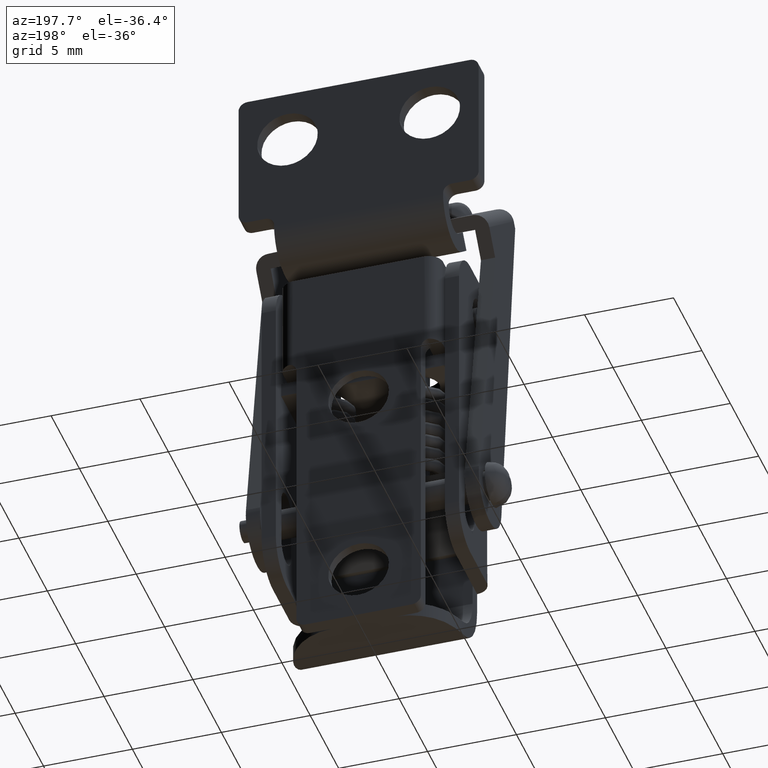
[diagram: clean part render]
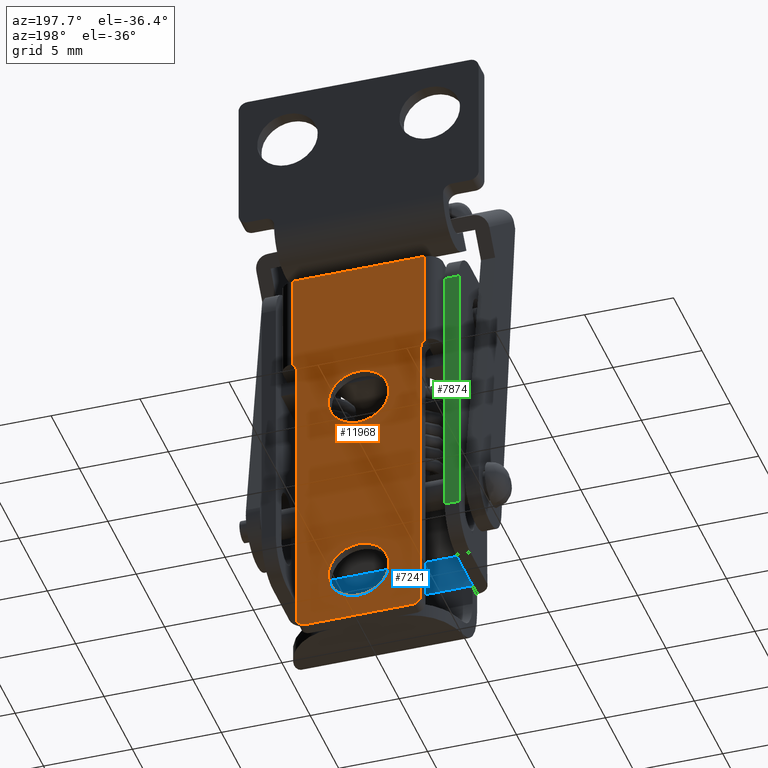
[diagram: same view with three faces highlighted in distinct colors, each labeled with its STEP entity id]
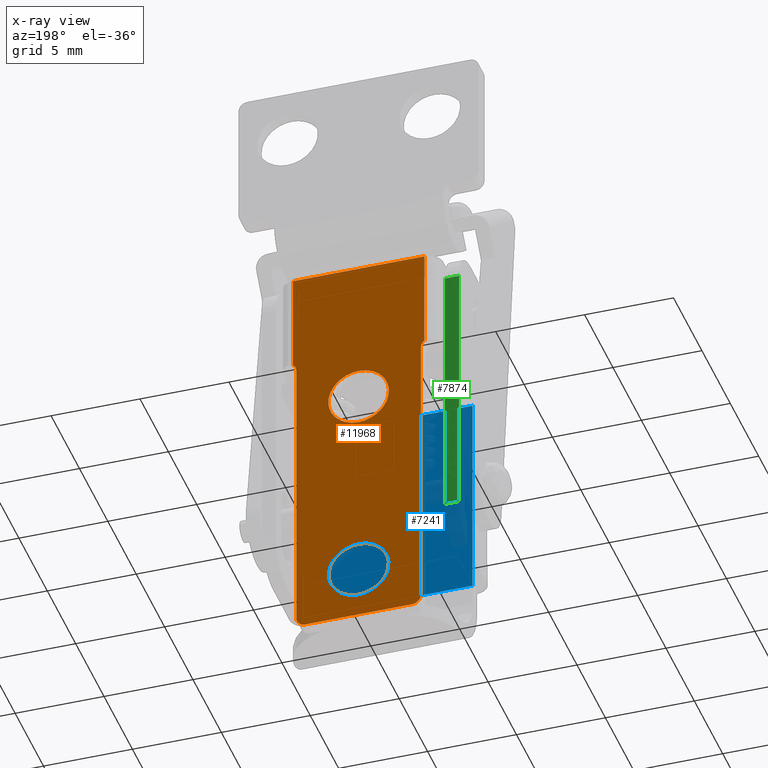
[diagram: x-ray of the same camera — body ghosted, the three highlighted faces saturated]
A machine part, auxiliary view with three faces highlighted in distinct colors.
The next image is the same camera in x-ray (body ghosted, the three faces saturated) — at least one of them is partly hidden behind the body in this view.
Their STEP definitions:

[orange] entity #11968 — the highlighted face is a freeform B-spline surface patch.
#9586=CARTESIAN_POINT('',(1.696829157312977,2.150009000000000,-5.668883517277946));
#9587=VERTEX_POINT('',#9586);
#9627=CARTESIAN_POINT('',(-1.696829157312977,2.150009000000000,-5.461318482722215));
#9628=VERTEX_POINT('',#9627);
#9634=CARTESIAN_POINT('',(0.0,2.150009000000000,-3.865101000000080));
#9635=VERTEX_POINT('',#9634);
#9636=CARTESIAN_POINT('',(0.0,2.150009000000000,-3.865101000000080));
#9637=CARTESIAN_POINT('',(-1.599200313674899,2.150009000000000,-3.865101000000081));
#9638=CARTESIAN_POINT('',(-1.696829157312977,2.150008999999999,-5.461318482722213));
#9646=(BOUNDED_CURVE()B_SPLINE_CURVE(2,(#9636,#9637,#9638),.UNSPECIFIED.,.F.,.U.)B_SPLINE_CURVE_WITH_KNOTS((3,3),(0.500000000000000,0.739332962234991),.UNSPECIFIED.)CURVE()GEOMETRIC_REPRESENTATION_ITEM()RATIONAL_B_SPLINE_CURVE((1.0,0.719603993291340,0.976072041658249))REPRESENTATION_ITEM(''));
#9647=EDGE_CURVE('',#9635,#9628,#9646,.T.);
#9649=CARTESIAN_POINT('',(1.696829157312978,2.150009000000000,-5.668883517277947));
#9650=CARTESIAN_POINT('',(1.700000000000000,2.150008999999999,-5.617040697642082));
#9651=CARTESIAN_POINT('',(1.700000000000000,2.150009000000000,-5.565101000000080));
#9652=CARTESIAN_POINT('',(1.700000000000000,2.150009000000000,-3.865101000000080));
#9653=CARTESIAN_POINT('',(0.0,2.150009000000000,-3.865101000000080));
#9661=(BOUNDED_CURVE()B_SPLINE_CURVE(2,(#9649,#9650,#9651,#9652,#9653),.UNSPECIFIED.,.F.,.U.)B_SPLINE_CURVE_WITH_KNOTS((3,2,3),(0.239332962234992,0.250000000000000,0.500000000000000),.UNSPECIFIED.)CURVE()GEOMETRIC_REPRESENTATION_ITEM()RATIONAL_B_SPLINE_CURVE((0.976072041658249,0.987502787895208,1.0,0.707106781186548,1.0))REPRESENTATION_ITEM(''));
#9662=EDGE_CURVE('',#9587,#9635,#9661,.T.);
#9686=CARTESIAN_POINT('',(0.0,2.150009000000000,-7.265101000000080));
#9687=VERTEX_POINT('',#9686);
#9688=CARTESIAN_POINT('',(0.0,2.150009000000000,-7.265101000000080));
#9689=CARTESIAN_POINT('',(1.599200313674899,2.150008999999999,-7.265101000000081));
#9690=CARTESIAN_POINT('',(1.696829157312978,2.150009000000000,-5.668883517277947));
#9698=(BOUNDED_CURVE()B_SPLINE_CURVE(2,(#9688,#9689,#9690),.UNSPECIFIED.,.F.,.U.)B_SPLINE_CURVE_WITH_KNOTS((3,3),(0.0,0.239332962234992),.UNSPECIFIED.)CURVE()GEOMETRIC_REPRESENTATION_ITEM()RATIONAL_B_SPLINE_CURVE((1.0,0.719603993291339,0.976072041658249))REPRESENTATION_ITEM(''));
#9699=EDGE_CURVE('',#9687,#9587,#9698,.T.);
#9701=CARTESIAN_POINT('',(-1.696829157312978,2.150009000000000,-5.461318482722215));
#9702=CARTESIAN_POINT('',(-1.700000000000000,2.150008999999999,-5.513161302358078));
#9703=CARTESIAN_POINT('',(-1.700000000000000,2.150009000000000,-5.565101000000080));
#9704=CARTESIAN_POINT('',(-1.700000000000000,2.150009000000000,-7.265101000000082));
#9705=CARTESIAN_POINT('',(0.0,2.150009000000000,-7.265101000000080));
#9713=(BOUNDED_CURVE()B_SPLINE_CURVE(2,(#9701,#9702,#9703,#9704,#9705),.UNSPECIFIED.,.F.,.U.)B_SPLINE_CURVE_WITH_KNOTS((3,2,3),(0.739332962234992,0.750000000000000,1.0),.UNSPECIFIED.)CURVE()GEOMETRIC_REPRESENTATION_ITEM()RATIONAL_B_SPLINE_CURVE((0.976072041658249,0.987502787895208,1.0,0.707106781186548,1.0))REPRESENTATION_ITEM(''));
#9714=EDGE_CURVE('',#9628,#9687,#9713,.T.);
#9890=CARTESIAN_POINT('',(1.696829157312977,2.150009000000000,5.831116482722054));
#9891=VERTEX_POINT('',#9890);
#9931=CARTESIAN_POINT('',(-1.696829157312977,2.150009000000000,6.038681517277784));
#9932=VERTEX_POINT('',#9931);
#9938=CARTESIAN_POINT('',(0.0,2.150009000000000,7.634898999999920));
#9939=VERTEX_POINT('',#9938);
#9940=CARTESIAN_POINT('',(0.0,2.150009000000000,7.634898999999920));
#9941=CARTESIAN_POINT('',(-1.599200313674901,2.150009000000000,7.634898999999923));
#9942=CARTESIAN_POINT('',(-1.696829157312977,2.150009000000000,6.038681517277784));
#9950=(BOUNDED_CURVE()B_SPLINE_CURVE(2,(#9940,#9941,#9942),.UNSPECIFIED.,.F.,.U.)B_SPLINE_CURVE_WITH_KNOTS((3,3),(0.500000000000000,0.739332962234992),.UNSPECIFIED.)CURVE()GEOMETRIC_REPRESENTATION_ITEM()RATIONAL_B_SPLINE_CURVE((1.0,0.719603993291339,0.976072041658250))REPRESENTATION_ITEM(''));
#9951=EDGE_CURVE('',#9939,#9932,#9950,.T.);
#9953=CARTESIAN_POINT('',(1.696829157312978,2.150009000000000,5.831116482722055));
#9954=CARTESIAN_POINT('',(1.700000000000000,2.150008999999999,5.882959302357918));
#9955=CARTESIAN_POINT('',(1.700000000000000,2.150009000000000,5.934898999999920));
#9956=CARTESIAN_POINT('',(1.700000000000000,2.150009000000000,7.634898999999920));
#9957=CARTESIAN_POINT('',(0.0,2.150009000000000,7.634898999999920));
#9965=(BOUNDED_CURVE()B_SPLINE_CURVE(2,(#9953,#9954,#9955,#9956,#9957),.UNSPECIFIED.,.F.,.U.)B_SPLINE_CURVE_WITH_KNOTS((3,2,3),(0.239332962234992,0.250000000000000,0.500000000000000),.UNSPECIFIED.)CURVE()GEOMETRIC_REPRESENTATION_ITEM()RATIONAL_B_SPLINE_CURVE((0.976072041658249,0.987502787895208,1.0,0.707106781186548,1.0))REPRESENTATION_ITEM(''));
#9966=EDGE_CURVE('',#9891,#9939,#9965,.T.);
#9990=CARTESIAN_POINT('',(0.0,2.150009000000000,4.234898999999920));
#9991=VERTEX_POINT('',#9990);
#9992=CARTESIAN_POINT('',(0.0,2.150009000000000,4.234898999999920));
#9993=CARTESIAN_POINT('',(1.599200313674899,2.150008999999999,4.234898999999920));
#9994=CARTESIAN_POINT('',(1.696829157312978,2.150009000000000,5.831116482722055));
#10002=(BOUNDED_CURVE()B_SPLINE_CURVE(2,(#9992,#9993,#9994),.UNSPECIFIED.,.F.,.U.)B_SPLINE_CURVE_WITH_KNOTS((3,3),(0.0,0.239332962234992),.UNSPECIFIED.)CURVE()GEOMETRIC_REPRESENTATION_ITEM()RATIONAL_B_SPLINE_CURVE((1.0,0.719603993291339,0.976072041658249))REPRESENTATION_ITEM(''));
#10003=EDGE_CURVE('',#9991,#9891,#10002,.T.);
#10005=CARTESIAN_POINT('',(-1.696829157312977,2.150009000000000,6.038681517277784));
#10006=CARTESIAN_POINT('',(-1.700000000000000,2.150009000000000,5.986838697641922));
#10007=CARTESIAN_POINT('',(-1.700000000000000,2.150009000000000,5.934898999999920));
#10008=CARTESIAN_POINT('',(-1.700000000000000,2.150009000000000,4.234898999999919));
#10009=CARTESIAN_POINT('',(0.0,2.150009000000000,4.234898999999920));
#10017=(BOUNDED_CURVE()B_SPLINE_CURVE(2,(#10005,#10006,#10007,#10008,#10009),.UNSPECIFIED.,.F.,.U.)B_SPLINE_CURVE_WITH_KNOTS((3,2,3),(0.739332962234992,0.750000000000000,1.0),.UNSPECIFIED.)CURVE()GEOMETRIC_REPRESENTATION_ITEM()RATIONAL_B_SPLINE_CURVE((0.976072041658250,0.987502787895208,1.0,0.707106781186548,1.0))REPRESENTATION_ITEM(''));
#10018=EDGE_CURVE('',#9932,#9991,#10017,.T.);
#11031=CARTESIAN_POINT('',(3.700000000000000,2.150009000000065,14.434898999999920));
#11032=VERTEX_POINT('',#11031);
#11033=CARTESIAN_POINT('',(-3.700000000000000,2.150009000000065,14.434898999999920));
#11034=VERTEX_POINT('',#11033);
#11035=CARTESIAN_POINT('',(3.700000000000000,2.150009000000065,14.434898999999920));
#11036=CARTESIAN_POINT('',(-3.700000000000000,2.150009000000065,14.434898999999920));
#11037=QUASI_UNIFORM_CURVE('',1,(#11035,#11036),.UNSPECIFIED.,.F.,.U.);
#11038=EDGE_CURVE('',#11032,#11034,#11037,.T.);
#11216=CARTESIAN_POINT('',(-3.700000000000000,2.150009000000000,8.834899000000000));
#11217=VERTEX_POINT('',#11216);
#11231=CARTESIAN_POINT('',(-3.500000000000000,2.150009000000065,8.434899000000000));
#11232=VERTEX_POINT('',#11231);
#11233=CARTESIAN_POINT('',(-3.500000000000000,2.150009000000065,8.434899000000000));
#11234=CARTESIAN_POINT('',(-3.500000000000000,2.150009000000065,8.684899000000000));
#11235=CARTESIAN_POINT('',(-3.700000000000000,2.150009000000065,8.834899000000000));
#11243=(BOUNDED_CURVE()B_SPLINE_CURVE(2,(#11233,#11234,#11235),.UNSPECIFIED.,.F.,.U.)CURVE()GEOMETRIC_REPRESENTATION_ITEM()QUASI_UNIFORM_CURVE()RATIONAL_B_SPLINE_CURVE((1.0,0.894427190999916,1.0))REPRESENTATION_ITEM(''));
#11244=EDGE_CURVE('',#11232,#11217,#11243,.T.);
#11285=CARTESIAN_POINT('',(3.500000000000000,2.150009000000065,8.434899000000000));
#11286=VERTEX_POINT('',#11285);
#11292=CARTESIAN_POINT('',(3.700000000000000,2.150009000000000,8.834899000000000));
#11293=VERTEX_POINT('',#11292);
#11294=CARTESIAN_POINT('',(3.700000000000000,2.150009000000000,8.834899000000000));
#11295=CARTESIAN_POINT('',(3.500000000000000,2.150009000000066,8.684899000000000));
#11296=CARTESIAN_POINT('',(3.500000000000000,2.150009000000065,8.434899000000000));
#11304=(BOUNDED_CURVE()B_SPLINE_CURVE(2,(#11294,#11295,#11296),.UNSPECIFIED.,.F.,.U.)CURVE()GEOMETRIC_REPRESENTATION_ITEM()QUASI_UNIFORM_CURVE()RATIONAL_B_SPLINE_CURVE((1.0,0.894427190999916,1.0))REPRESENTATION_ITEM(''));
#11305=EDGE_CURVE('',#11293,#11286,#11304,.T.);
#11706=CARTESIAN_POINT('',(-3.700000000000000,2.150009000000000,8.834899000000000));
#11707=CARTESIAN_POINT('',(-3.700000000000000,2.150009000000065,14.434898999999920));
#11708=QUASI_UNIFORM_CURVE('',1,(#11706,#11707),.UNSPECIFIED.,.F.,.U.);
#11709=EDGE_CURVE('',#11217,#11034,#11708,.T.);
#11757=CARTESIAN_POINT('',(3.700000000000000,2.150009000000065,14.434898999999920));
#11758=CARTESIAN_POINT('',(3.700000000000000,2.150009000000000,8.834899000000000));
#11759=QUASI_UNIFORM_CURVE('',1,(#11757,#11758),.UNSPECIFIED.,.F.,.U.);
#11760=EDGE_CURVE('',#11032,#11293,#11759,.T.);
#11895=CARTESIAN_POINT('',(-4.069629985657365,2.150009000000000,15.583748955421459));
#11896=CARTESIAN_POINT('',(4.069630184140832,2.150009000000000,15.583748955421459));
#11897=CARTESIAN_POINT('',(-4.069629985657365,2.150009000000000,-9.713951572329712));
#11898=CARTESIAN_POINT('',(4.069630184140832,2.150009000000000,-9.713951572329712));
#11899=B_SPLINE_SURFACE_WITH_KNOTS('',1,1,((#11895,#11897),(#11896,#11898)),.UNSPECIFIED.,.F.,.F.,.U.,(2,2),(2,2),(0.0,8.139260169798197),(0.0,25.297700527751172),.UNSPECIFIED.);
#11900=ORIENTED_EDGE('',*,*,#11709,.T.);
#11901=ORIENTED_EDGE('',*,*,#11038,.F.);
#11902=ORIENTED_EDGE('',*,*,#11760,.T.);
#11903=ORIENTED_EDGE('',*,*,#11305,.T.);
#11904=CARTESIAN_POINT('',(3.500000000000000,2.150009000000065,-8.065101000000000));
#11905=VERTEX_POINT('',#11904);
#11906=CARTESIAN_POINT('',(3.500000000000000,2.150009000000065,-8.065101000000000));
#11907=CARTESIAN_POINT('',(3.500000000000000,2.150009000000065,8.434899000000000));
#11908=QUASI_UNIFORM_CURVE('',1,(#11906,#11907),.UNSPECIFIED.,.F.,.U.);
#11909=EDGE_CURVE('',#11905,#11286,#11908,.T.);
#11910=ORIENTED_EDGE('',*,*,#11909,.F.);
#11911=CARTESIAN_POINT('',(3.0,2.150009000000065,-8.565101000000102));
#11912=VERTEX_POINT('',#11911);
#11913=CARTESIAN_POINT('',(3.0,2.150009000000065,-8.565101000000102));
#11914=CARTESIAN_POINT('',(3.499999999999999,2.150009000000065,-8.565101000000000));
#11915=CARTESIAN_POINT('',(3.500000000000000,2.150009000000065,-8.065101000000000));
#11923=(BOUNDED_CURVE()B_SPLINE_CURVE(2,(#11913,#11914,#11915),.UNSPECIFIED.,.F.,.U.)CURVE()GEOMETRIC_REPRESENTATION_ITEM()QUASI_UNIFORM_CURVE()RATIONAL_B_SPLINE_CURVE((1.0,0.707106781186548,1.0))REPRESENTATION_ITEM(''));
#11924=EDGE_CURVE('',#11912,#11905,#11923,.T.);
#11925=ORIENTED_EDGE('',*,*,#11924,.F.);
#11926=CARTESIAN_POINT('',(-3.0,2.150009000000065,-8.565101000000000));
#11927=VERTEX_POINT('',#11926);
#11928=CARTESIAN_POINT('',(-3.0,2.150009000000065,-8.565101000000000));
#11929=CARTESIAN_POINT('',(3.0,2.150009000000065,-8.565101000000102));
#11930=QUASI_UNIFORM_CURVE('',1,(#11928,#11929),.UNSPECIFIED.,.F.,.U.);
#11931=EDGE_CURVE('',#11927,#11912,#11930,.T.);
#11932=ORIENTED_EDGE('',*,*,#11931,.F.);
#11933=CARTESIAN_POINT('',(-3.500000000000000,2.150009000000065,-8.065101000000000));
#11934=VERTEX_POINT('',#11933);
#11935=CARTESIAN_POINT('',(-3.500000000000000,2.150009000000065,-8.065101000000000));
#11936=CARTESIAN_POINT('',(-3.499999999999999,2.150009000000065,-8.565101000000000));
#11937=CARTESIAN_POINT('',(-3.0,2.150009000000065,-8.565101000000000));
#11945=(BOUNDED_CURVE()B_SPLINE_CURVE(2,(#11935,#11936,#11937),.UNSPECIFIED.,.F.,.U.)CURVE()GEOMETRIC_REPRESENTATION_ITEM()QUASI_UNIFORM_CURVE()RATIONAL_B_SPLINE_CURVE((1.0,0.707106781186548,1.0))REPRESENTATION_ITEM(''));
#11946=EDGE_CURVE('',#11934,#11927,#11945,.T.);
#11947=ORIENTED_EDGE('',*,*,#11946,.F.);
#11948=CARTESIAN_POINT('',(-3.500000000000000,2.150009000000065,8.434899000000000));
#11949=CARTESIAN_POINT('',(-3.500000000000000,2.150009000000065,-8.065101000000000));
#11950=QUASI_UNIFORM_CURVE('',1,(#11948,#11949),.UNSPECIFIED.,.F.,.U.);
#11951=EDGE_CURVE('',#11232,#11934,#11950,.T.);
#11952=ORIENTED_EDGE('',*,*,#11951,.F.);
#11953=ORIENTED_EDGE('',*,*,#11244,.T.);
#11954=EDGE_LOOP('',(#11900,#11901,#11902,#11903,#11910,#11925,#11932,#11947,#11952,#11953));
#11955=FACE_OUTER_BOUND('',#11954,.T.);
#11956=ORIENTED_EDGE('',*,*,#9951,.T.);
#11957=ORIENTED_EDGE('',*,*,#10018,.T.);
#11958=ORIENTED_EDGE('',*,*,#10003,.T.);
#11959=ORIENTED_EDGE('',*,*,#9966,.T.);
#11960=EDGE_LOOP('',(#11956,#11957,#11958,#11959));
#11961=FACE_BOUND('',#11960,.T.);
#11962=ORIENTED_EDGE('',*,*,#9647,.T.);
#11963=ORIENTED_EDGE('',*,*,#9714,.T.);
#11964=ORIENTED_EDGE('',*,*,#9699,.T.);
#11965=ORIENTED_EDGE('',*,*,#9662,.T.);
#11966=EDGE_LOOP('',(#11962,#11963,#11964,#11965));
#11967=FACE_BOUND('',#11966,.T.);
#11968=ADVANCED_FACE('',(#11955,#11961,#11967),#11899,.T.);

[blue] entity #7241 — the highlighted face is a freeform B-spline surface patch.
#6111=CARTESIAN_POINT('',(4.750000000000000,-3.049997000000000,-4.065101000000100));
#6112=VERTEX_POINT('',#6111);
#6379=CARTESIAN_POINT('',(4.750000000000000,-3.049991000000000,7.904903000000000));
#6380=VERTEX_POINT('',#6379);
#6381=CARTESIAN_POINT('',(4.750000000000000,-3.049997000000000,-4.065101000000100));
#6382=CARTESIAN_POINT('',(4.750000000000000,-3.049991000000000,7.904903000000000));
#6383=QUASI_UNIFORM_CURVE('',1,(#6381,#6382),.UNSPECIFIED.,.F.,.U.);
#6384=EDGE_CURVE('',#6112,#6380,#6383,.T.);
#6808=CARTESIAN_POINT('',(-4.750000000000000,-3.049991000000000,7.904903000000000));
#6809=VERTEX_POINT('',#6808);
#6810=CARTESIAN_POINT('',(-4.750000000000000,-3.049991000000000,7.904903000000000));
#6811=CARTESIAN_POINT('',(4.750000000000000,-3.049991000000000,7.904903000000000));
#6812=QUASI_UNIFORM_CURVE('',1,(#6810,#6811),.UNSPECIFIED.,.F.,.U.);
#6813=EDGE_CURVE('',#6809,#6380,#6812,.T.);
#7052=CARTESIAN_POINT('',(-4.750000000000000,-3.049997000000000,-4.065101000000100));
#7053=VERTEX_POINT('',#7052);
#7059=CARTESIAN_POINT('',(-4.750000000000000,-3.049997000000000,-4.065101000000100));
#7060=CARTESIAN_POINT('',(4.750000000000000,-3.049997000000000,-4.065101000000100));
#7061=QUASI_UNIFORM_CURVE('',1,(#7059,#7060),.UNSPECIFIED.,.F.,.U.);
#7062=EDGE_CURVE('',#7053,#6112,#7061,.T.);
#7226=CARTESIAN_POINT('',(-5.224524981587156,-3.049991000000000,8.502804676599816));
#7227=CARTESIAN_POINT('',(-5.224524981587156,-3.049991000000000,-4.663002997660440));
#7228=CARTESIAN_POINT('',(5.224525236397013,-3.049991000000000,8.502804676599816));
#7229=CARTESIAN_POINT('',(5.224525236397013,-3.049991000000000,-4.663002997660440));
#7230=B_SPLINE_SURFACE_WITH_KNOTS('',1,1,((#7226,#7228),(#7227,#7229)),.UNSPECIFIED.,.F.,.F.,.U.,(2,2),(2,2),(0.0,13.165807674260259),(0.0,10.449050217984171),.UNSPECIFIED.);
#7231=CARTESIAN_POINT('',(-4.750000000000000,-3.049997000000000,-4.065101000000100));
#7232=CARTESIAN_POINT('',(-4.750000000000000,-3.049991000000000,7.904903000000000));
#7233=QUASI_UNIFORM_CURVE('',1,(#7231,#7232),.UNSPECIFIED.,.F.,.U.);
#7234=EDGE_CURVE('',#7053,#6809,#7233,.T.);
#7235=ORIENTED_EDGE('',*,*,#7234,.T.);
#7236=ORIENTED_EDGE('',*,*,#6813,.T.);
#7237=ORIENTED_EDGE('',*,*,#6384,.F.);
#7238=ORIENTED_EDGE('',*,*,#7062,.F.);
#7239=EDGE_LOOP('',(#7235,#7236,#7237,#7238));
#7240=FACE_OUTER_BOUND('',#7239,.T.);
#7241=ADVANCED_FACE('',(#7240),#7230,.F.);

[green] entity #7874 — the highlighted face is a freeform B-spline surface patch.
#7358=CARTESIAN_POINT('',(-4.750000000000000,1.850006000000000,-2.065101000000085));
#7359=VERTEX_POINT('',#7358);
#7373=CARTESIAN_POINT('',(-4.750000000000000,1.850006000000000,12.934898999999920));
#7374=VERTEX_POINT('',#7373);
#7375=CARTESIAN_POINT('',(-4.750000000000000,1.850006000000000,12.934898999999920));
#7376=CARTESIAN_POINT('',(-4.750000000000000,1.850006000000000,-2.065101000000085));
#7377=QUASI_UNIFORM_CURVE('',1,(#7375,#7376),.UNSPECIFIED.,.F.,.U.);
#7378=EDGE_CURVE('',#7374,#7359,#7377,.T.);
#7822=CARTESIAN_POINT('',(-5.550003000000000,1.850006000000000,-2.065101000000085));
#7823=VERTEX_POINT('',#7822);
#7824=CARTESIAN_POINT('',(-4.750000000000000,1.850006000000000,-2.065101000000085));
#7825=CARTESIAN_POINT('',(-5.550003000000000,1.850006000000000,-2.065101000000085));
#7826=QUASI_UNIFORM_CURVE('',1,(#7824,#7825),.UNSPECIFIED.,.F.,.U.);
#7827=EDGE_CURVE('',#7359,#7823,#7826,.T.);
#7853=CARTESIAN_POINT('',(-5.589963148299439,1.850006000000000,-2.814350970927175));
#7854=CARTESIAN_POINT('',(-5.589963148299439,1.850006000000000,13.684149373258361));
#7855=CARTESIAN_POINT('',(-4.710039830242808,1.850006000000000,-2.814350970927175));
#7856=CARTESIAN_POINT('',(-4.710039830242808,1.850006000000000,13.684149373258361));
#7857=B_SPLINE_SURFACE_WITH_KNOTS('',1,1,((#7853,#7855),(#7854,#7856)),.UNSPECIFIED.,.F.,.F.,.U.,(2,2),(2,2),(0.0,16.498500344185540),(0.041708334948495,0.958291687403247),.UNSPECIFIED.);
#7858=ORIENTED_EDGE('',*,*,#7378,.T.);
#7859=ORIENTED_EDGE('',*,*,#7827,.T.);
#7860=CARTESIAN_POINT('',(-5.550003000000000,1.850006000000000,12.934898999999920));
#7861=VERTEX_POINT('',#7860);
#7862=CARTESIAN_POINT('',(-5.550003000000000,1.850006000000000,12.934898999999920));
#7863=CARTESIAN_POINT('',(-5.550003000000000,1.850006000000000,-2.065101000000085));
#7864=QUASI_UNIFORM_CURVE('',1,(#7862,#7863),.UNSPECIFIED.,.F.,.U.);
#7865=EDGE_CURVE('',#7861,#7823,#7864,.T.);
#7866=ORIENTED_EDGE('',*,*,#7865,.F.);
#7867=CARTESIAN_POINT('',(-4.750000000000000,1.850006000000000,12.934898999999920));
#7868=CARTESIAN_POINT('',(-5.550003000000000,1.850006000000000,12.934898999999920));
#7869=QUASI_UNIFORM_CURVE('',1,(#7867,#7868),.UNSPECIFIED.,.F.,.U.);
#7870=EDGE_CURVE('',#7374,#7861,#7869,.T.);
#7871=ORIENTED_EDGE('',*,*,#7870,.F.);
#7872=EDGE_LOOP('',(#7858,#7859,#7866,#7871));
#7873=FACE_OUTER_BOUND('',#7872,.T.);
#7874=ADVANCED_FACE('',(#7873),#7857,.T.);